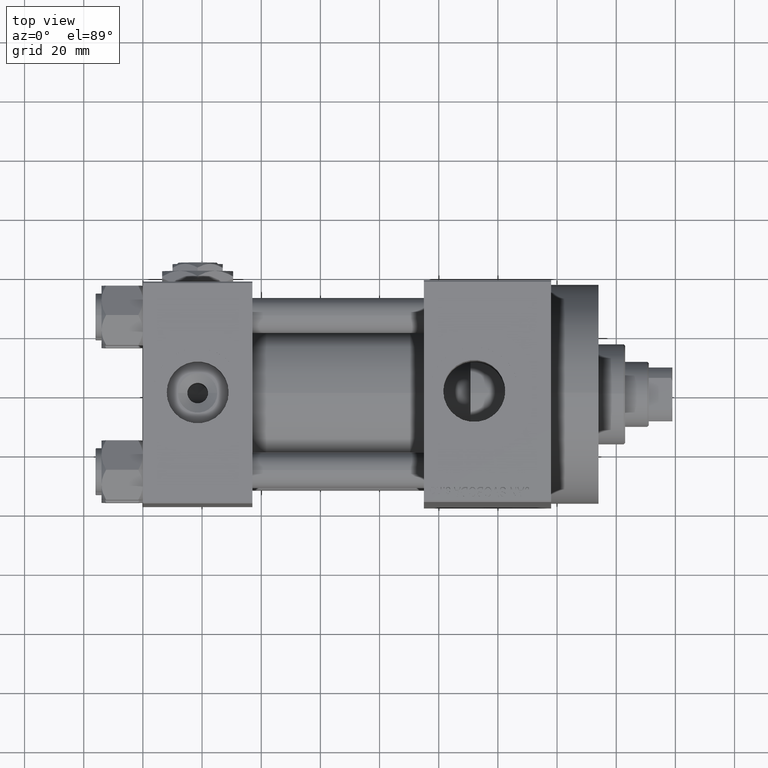
[diagram: clean part render]
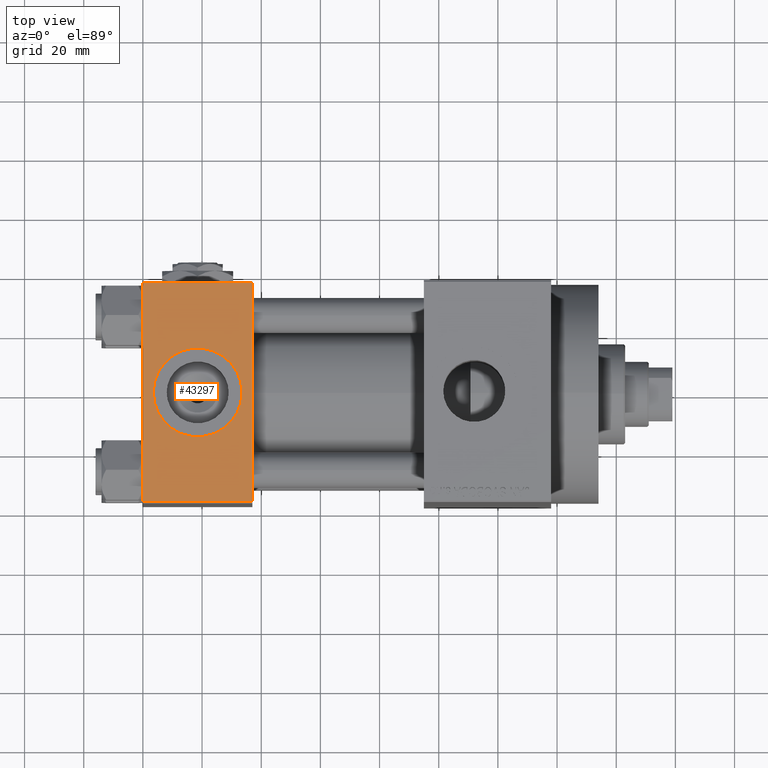
[diagram: same view with one face highlighted and labeled with its STEP entity id]
A machine part, top view. The second image highlights one B-rep face of the part: STEP entity #43297.
In plain terms, the highlighted planar face has unit normal (0, 0, -1).
Its self-contained STEP definition (entity closure, byte-faithful):
#372 = LINE ( 'NONE', #3842, #43637 ) ;
#3842 = CARTESIAN_POINT ( 'NONE',  ( 0.000000000000000000, 36.99999999999999289, 37.50000000000000000 ) ) ;
#4394 = EDGE_CURVE ( 'NONE', #39001, #43403, #14674, .T. ) ;
#7301 = CIRCLE ( 'NONE', #36555, 15.00000000000000355 ) ;
#8438 = EDGE_LOOP ( 'NONE', ( #9834, #20516, #25497, #39812 ) ) ;
#9834 = ORIENTED_EDGE ( 'NONE', *, *, #44645, .T. ) ;
#10256 = AXIS2_PLACEMENT_3D ( 'NONE', #15372, #34431, #22812 ) ;
#10980 = ORIENTED_EDGE ( 'NONE', *, *, #34575, .F. ) ;
#11827 = EDGE_CURVE ( 'NONE', #47776, #25246, #31607, .T. ) ;
#12455 = PLANE ( 'NONE',  #44025 ) ;
#14598 = LINE ( 'NONE', #18083, #44169 ) ;
#14674 = LINE ( 'NONE', #25350, #32007 ) ;
#15372 = CARTESIAN_POINT ( 'NONE',  ( 18.50000000000000000, -5.204170427930421283E-15, 37.50000000000000000 ) ) ;
#16167 = FACE_OUTER_BOUND ( 'NONE', #8438, .T. ) ;
#18083 = CARTESIAN_POINT ( 'NONE',  ( 37.00000000000000000, 37.49999999999999289, 37.50000000000000000 ) ) ;
#20516 = ORIENTED_EDGE ( 'NONE', *, *, #4394, .T. ) ;
#21497 = CARTESIAN_POINT ( 'NONE',  ( 0.000000000000000000, 37.49999999999999289, 37.50000000000000000 ) ) ;
#21718 = CARTESIAN_POINT ( 'NONE',  ( 0.000000000000000000, 36.99999999999999289, 37.50000000000000000 ) ) ;
#22812 = DIRECTION ( 'NONE',  ( 1.000000000000000000, 0.000000000000000000, 0.000000000000000000 ) ) ;
#22959 = EDGE_CURVE ( 'NONE', #27784, #43403, #14598, .T. ) ;
#23142 = DIRECTION ( 'NONE',  ( 1.000000000000000000, 0.000000000000000000, 0.000000000000000000 ) ) ;
#23854 = CARTESIAN_POINT ( 'NONE',  ( 37.00000000000000000, 37.49999999999999289, 37.50000000000000000 ) ) ;
#24283 = CARTESIAN_POINT ( 'NONE',  ( 0.000000000000000000, -37.00000000000000711, 37.49999999999999289 ) ) ;
#24338 = VECTOR ( 'NONE', #32650, 1000.000000000000000 ) ;
#25246 = VERTEX_POINT ( 'NONE', #29733 ) ;
#25350 = CARTESIAN_POINT ( 'NONE',  ( 37.00000000000000000, -37.00000000000000711, 37.49999999999999289 ) ) ;
#25497 = ORIENTED_EDGE ( 'NONE', *, *, #22959, .F. ) ;
#27565 = DIRECTION ( 'NONE',  ( 0.000000000000000000, 9.251858538542971581E-17, -1.000000000000000000 ) ) ;
#27784 = VERTEX_POINT ( 'NONE', #32786 ) ;
#29733 = CARTESIAN_POINT ( 'NONE',  ( 3.499999999999997780, -3.367200229209391300E-15, 37.50000000000000000 ) ) ;
#30031 = ORIENTED_EDGE ( 'NONE', *, *, #11827, .F. ) ;
#30254 = EDGE_CURVE ( 'NONE', #27784, #33161, #372, .T. ) ;
#31607 = CIRCLE ( 'NONE', #10256, 15.00000000000000355 ) ;
#32007 = VECTOR ( 'NONE', #33257, 1000.000000000000000 ) ;
#32650 = DIRECTION ( 'NONE',  ( 0.000000000000000000, -1.000000000000000000, -9.251858538542971581E-17 ) ) ;
#32786 = CARTESIAN_POINT ( 'NONE',  ( 37.00000000000000000, 36.99999999999999289, 37.50000000000000000 ) ) ;
#33161 = VERTEX_POINT ( 'NONE', #21718 ) ;
#33257 = DIRECTION ( 'NONE',  ( 1.000000000000000000, 0.000000000000000000, 0.000000000000000000 ) ) ;
#34278 = CARTESIAN_POINT ( 'NONE',  ( 18.50000000000000000, -5.204170427930421283E-15, 37.50000000000000000 ) ) ;
#34431 = DIRECTION ( 'NONE',  ( 0.000000000000000000, 0.000000000000000000, 1.000000000000000000 ) ) ;
#34575 = EDGE_CURVE ( 'NONE', #25246, #47776, #7301, .T. ) ;
#36360 = LINE ( 'NONE', #21497, #24338 ) ;
#36555 = AXIS2_PLACEMENT_3D ( 'NONE', #34278, #46158, #23142 ) ;
#37376 = DIRECTION ( 'NONE',  ( 0.000000000000000000, -1.000000000000000000, -9.251858538542971581E-17 ) ) ;
#38697 = EDGE_LOOP ( 'NONE', ( #30031, #10980 ) ) ;
#39001 = VERTEX_POINT ( 'NONE', #24283 ) ;
#39812 = ORIENTED_EDGE ( 'NONE', *, *, #30254, .T. ) ;
#41381 = CARTESIAN_POINT ( 'NONE',  ( 37.00000000000000000, -37.00000000000000711, 37.49999999999999289 ) ) ;
#42663 = DIRECTION ( 'NONE',  ( 0.000000000000000000, 1.000000000000000000, 9.251858538542971581E-17 ) ) ;
#43297 = ADVANCED_FACE ( 'NONE', ( #46378, #16167 ), #12455, .F. ) ;
#43403 = VERTEX_POINT ( 'NONE', #41381 ) ;
#43637 = VECTOR ( 'NONE', #45674, 1000.000000000000000 ) ;
#44025 = AXIS2_PLACEMENT_3D ( 'NONE', #23854, #27565, #42663 ) ;
#44169 = VECTOR ( 'NONE', #37376, 1000.000000000000000 ) ;
#44645 = EDGE_CURVE ( 'NONE', #33161, #39001, #36360, .T. ) ;
#45674 = DIRECTION ( 'NONE',  ( -1.000000000000000000, 0.000000000000000000, 0.000000000000000000 ) ) ;
#46158 = DIRECTION ( 'NONE',  ( 0.000000000000000000, 0.000000000000000000, 1.000000000000000000 ) ) ;
#46378 = FACE_BOUND ( 'NONE', #38697, .T. ) ;
#47268 = CARTESIAN_POINT ( 'NONE',  ( 33.50000000000000000, -5.204170427930421283E-15, 37.50000000000000000 ) ) ;
#47776 = VERTEX_POINT ( 'NONE', #47268 ) ;